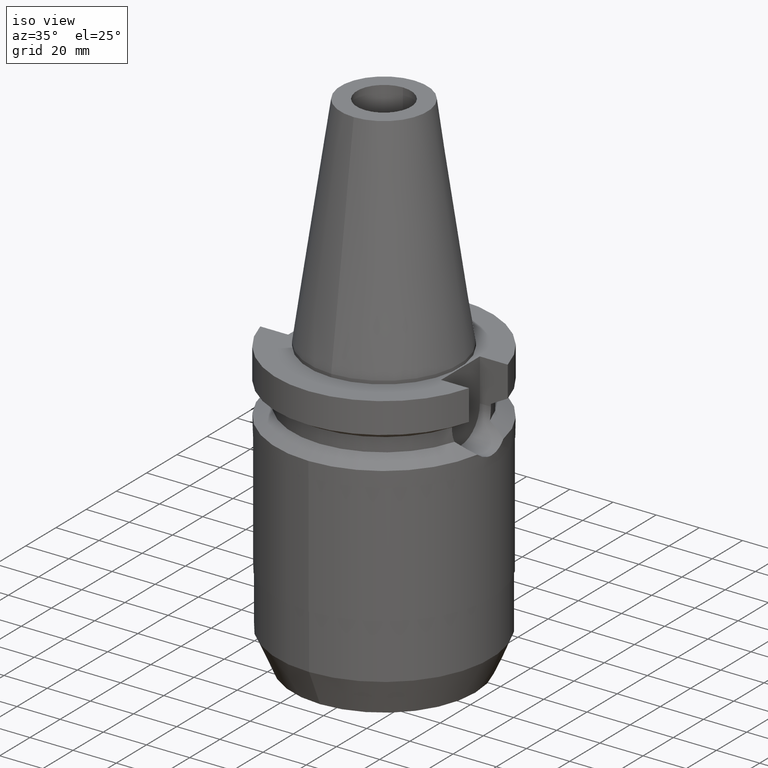
[diagram: clean part render]
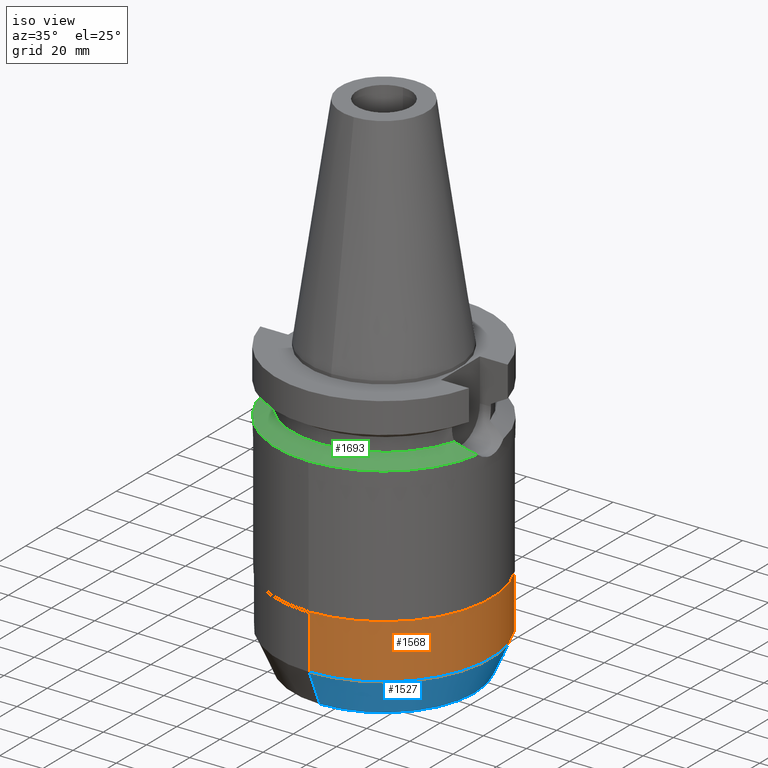
[diagram: same view with three faces highlighted in distinct colors, each labeled with its STEP entity id]
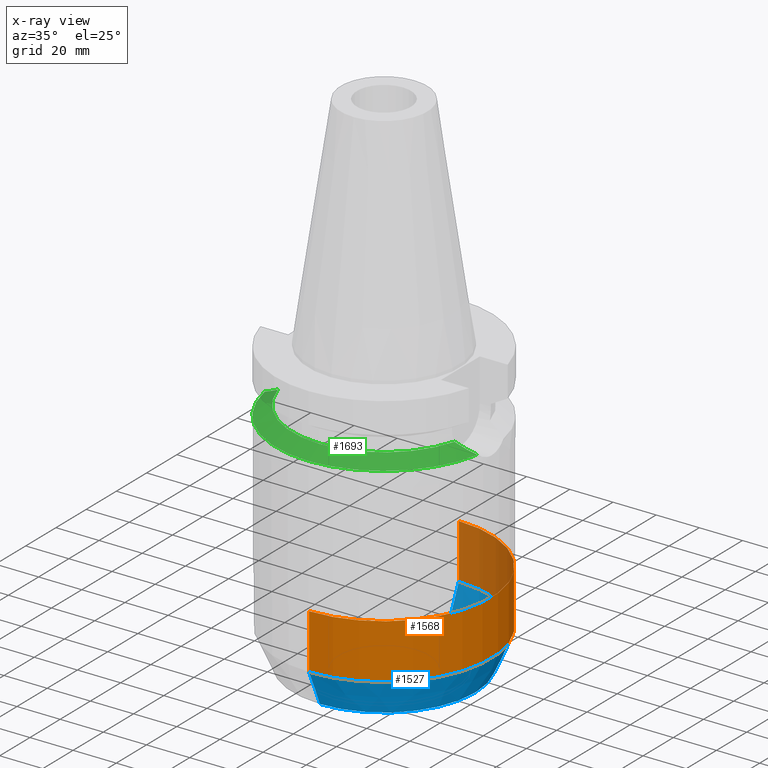
[diagram: x-ray of the same camera — body ghosted, the three highlighted faces saturated]
A machine part, iso view with three faces highlighted in distinct colors.
The next image is the same camera in x-ray (body ghosted, the three faces saturated) — at least one of them is partly hidden behind the body in this view.
Their STEP definitions:

[orange] entity #1568 — the highlighted cylindrical surface (partial cylindrical patch) has radius 49.5 mm, axis along (0, 0, -1).
#331=CARTESIAN_POINT('',(0.E0,0.E0,-1.193E2));
#332=DIRECTION('',(0.E0,0.E0,1.E0));
#333=DIRECTION('',(0.E0,-1.E0,0.E0));
#334=AXIS2_PLACEMENT_3D('',#331,#332,#333);
#354=DIRECTION('',(0.E0,1.426680296211E-14,-1.E0));
#355=VECTOR('',#354,2.54E1);
#356=CARTESIAN_POINT('',(0.E0,-4.95E1,-9.39E1));
#357=LINE('',#356,#355);
#361=DIRECTION('',(0.E0,-1.454654419666E-14,-1.E0));
#362=VECTOR('',#361,2.54E1);
#363=CARTESIAN_POINT('',(0.E0,4.95E1,-9.39E1));
#364=LINE('',#363,#362);
#392=CARTESIAN_POINT('',(0.E0,2.617560068498E-14,-9.39E1));
#393=DIRECTION('',(0.E0,0.E0,-1.E0));
#394=DIRECTION('',(0.E0,1.E0,0.E0));
#395=AXIS2_PLACEMENT_3D('',#392,#393,#394);
#1110=CARTESIAN_POINT('',(0.E0,4.95E1,-1.193E2));
#1111=VERTEX_POINT('',#1110);
#1112=CARTESIAN_POINT('',(0.E0,-4.95E1,-1.193E2));
#1113=VERTEX_POINT('',#1112);
#1114=CARTESIAN_POINT('',(0.E0,4.95E1,-9.39E1));
#1115=VERTEX_POINT('',#1114);
#1116=CARTESIAN_POINT('',(0.E0,-4.95E1,-9.39E1));
#1117=VERTEX_POINT('',#1116);
#1556=CARTESIAN_POINT('',(0.E0,2.617560068498E-14,1.1374E2));
#1557=DIRECTION('',(0.E0,0.E0,-1.E0));
#1558=DIRECTION('',(0.E0,-1.E0,0.E0));
#1559=AXIS2_PLACEMENT_3D('',#1556,#1557,#1558);
#1560=CYLINDRICAL_SURFACE('',#1559,4.95E1);
#1561=ORIENTED_EDGE('',*,*,#1546,.T.);
#1562=ORIENTED_EDGE('',*,*,#1523,.F.);
#1563=ORIENTED_EDGE('',*,*,#1550,.F.);
#1565=ORIENTED_EDGE('',*,*,#1564,.F.);
#1566=EDGE_LOOP('',(#1561,#1562,#1563,#1565));
#1567=FACE_OUTER_BOUND('',#1566,.F.);
#335=CIRCLE('',#334,4.95E1);
#396=CIRCLE('',#395,4.95E1);
#1523=EDGE_CURVE('',#1113,#1111,#335,.T.);
#1546=EDGE_CURVE('',#1115,#1111,#364,.T.);
#1550=EDGE_CURVE('',#1117,#1113,#357,.T.);
#1564=EDGE_CURVE('',#1115,#1117,#396,.T.);
#1568=ADVANCED_FACE('',(#1567),#1560,.T.);

[blue] entity #1527 — the highlighted conical surface has half-angle 24 deg.
#292=CARTESIAN_POINT('',(0.E0,0.E0,-1.355E2));
#293=DIRECTION('',(0.E0,0.E0,1.E0));
#294=DIRECTION('',(0.E0,-1.E0,0.E0));
#295=AXIS2_PLACEMENT_3D('',#292,#293,#294);
#324=DIRECTION('',(0.E0,-4.067366430758E-1,-9.135454576426E-1));
#325=VECTOR('',#324,1.773310771180E1);
#326=CARTESIAN_POINT('',(0.E0,4.95E1,-1.193E2));
#327=LINE('',#326,#325);
#331=CARTESIAN_POINT('',(0.E0,0.E0,-1.193E2));
#332=DIRECTION('',(0.E0,0.E0,1.E0));
#333=DIRECTION('',(0.E0,-1.E0,0.E0));
#334=AXIS2_PLACEMENT_3D('',#331,#332,#333);
#347=DIRECTION('',(0.E0,4.067366430758E-1,-9.135454576426E-1));
#348=VECTOR('',#347,1.773310771180E1);
#349=CARTESIAN_POINT('',(0.E0,-4.95E1,-1.193E2));
#350=LINE('',#349,#348);
#1106=CARTESIAN_POINT('',(0.E0,-4.228729529800E1,-1.355E2));
#1107=CARTESIAN_POINT('',(0.E0,4.228729529800E1,-1.355E2));
#1108=VERTEX_POINT('',#1106);
#1109=VERTEX_POINT('',#1107);
#1110=CARTESIAN_POINT('',(0.E0,4.95E1,-1.193E2));
#1111=VERTEX_POINT('',#1110);
#1112=CARTESIAN_POINT('',(0.E0,-4.95E1,-1.193E2));
#1113=VERTEX_POINT('',#1112);
#1513=CARTESIAN_POINT('',(0.E0,0.E0,-1.274E2));
#1514=DIRECTION('',(0.E0,0.E0,1.E0));
#1515=DIRECTION('',(0.E0,1.E0,0.E0));
#1516=AXIS2_PLACEMENT_3D('',#1513,#1514,#1515);
#1517=CONICAL_SURFACE('',#1516,4.589364764900E1,2.4E1);
#1519=ORIENTED_EDGE('',*,*,#1518,.T.);
#1520=ORIENTED_EDGE('',*,*,#1502,.F.);
#1522=ORIENTED_EDGE('',*,*,#1521,.F.);
#1524=ORIENTED_EDGE('',*,*,#1523,.T.);
#1525=EDGE_LOOP('',(#1519,#1520,#1522,#1524));
#1526=FACE_OUTER_BOUND('',#1525,.F.);
#296=CIRCLE('',#295,4.228729529800E1);
#335=CIRCLE('',#334,4.95E1);
#1502=EDGE_CURVE('',#1108,#1109,#296,.T.);
#1518=EDGE_CURVE('',#1111,#1109,#327,.T.);
#1521=EDGE_CURVE('',#1113,#1108,#350,.T.);
#1523=EDGE_CURVE('',#1113,#1111,#335,.T.);
#1527=ADVANCED_FACE('',(#1526),#1517,.T.);

[green] entity #1693 — the highlighted conical surface has half-angle 60 deg.
#446=CARTESIAN_POINT('',(4.926250064874E1,-8.556052234130E0,-3.073730776427E1));
#489=CARTESIAN_POINT('',(-4.926250064874E1,-8.556052234130E0,
-3.073730776427E1));
#490=CARTESIAN_POINT('',(-4.853454341053E1,-8.973802105537E0,
-3.036449301706E1));
#491=CARTESIAN_POINT('',(-4.693965614036E1,-9.781160430566E0,
-2.954692880279E1));
#492=CARTESIAN_POINT('',(-4.408862980100E1,-1.087309005465E1,
-2.808097206646E1));
#493=CARTESIAN_POINT('',(-4.196941490402E1,-1.146554272243E1,
-2.698671155448E1));
#494=CARTESIAN_POINT('',(-4.085052569294E1,-1.172538061688E1,
-2.640718074535E1));
#499=CARTESIAN_POINT('',(0.E0,0.E0,-2.640718074535E1));
#500=DIRECTION('',(0.E0,0.E0,1.E0));
#501=DIRECTION('',(-9.611888398338E-1,-2.758913086325E-1,0.E0));
#502=AXIS2_PLACEMENT_3D('',#499,#500,#501);
#507=CARTESIAN_POINT('',(0.E0,0.E0,-2.640718074535E1));
#508=DIRECTION('',(0.E0,0.E0,1.E0));
#509=DIRECTION('',(0.E0,-1.E0,0.E0));
#510=AXIS2_PLACEMENT_3D('',#507,#508,#509);
#515=CARTESIAN_POINT('',(4.085052569294E1,-1.172538061688E1,-2.640718074535E1));
#516=CARTESIAN_POINT('',(4.196780114657E1,-1.146591748280E1,-2.698587570572E1));
#517=CARTESIAN_POINT('',(4.408489700264E1,-1.087422242856E1,-2.807904787786E1));
#518=CARTESIAN_POINT('',(4.693500115161E1,-9.783242168608E0,-2.954453877942E1));
#519=CARTESIAN_POINT('',(4.853263066770E1,-8.974899763518E0,-3.036351342829E1));
#520=CARTESIAN_POINT('',(4.926250064874E1,-8.556052234130E0,-3.073730776427E1));
#525=CARTESIAN_POINT('',(0.E0,0.E0,-3.073730776427E1));
#526=DIRECTION('',(0.E0,0.E0,-1.E0));
#527=DIRECTION('',(9.852500129747E-1,-1.711210446826E-1,0.E0));
#528=AXIS2_PLACEMENT_3D('',#525,#526,#527);
#533=CARTESIAN_POINT('',(0.E0,0.E0,-3.073730776427E1));
#534=DIRECTION('',(0.E0,0.E0,-1.E0));
#535=DIRECTION('',(0.E0,-1.E0,0.E0));
#536=AXIS2_PLACEMENT_3D('',#533,#534,#535);
#1132=VERTEX_POINT('',#446);
#1135=CARTESIAN_POINT('',(0.E0,-5.E1,-3.073730776427E1));
#1136=VERTEX_POINT('',#1135);
#1137=VERTEX_POINT('',#515);
#1148=VERTEX_POINT('',#489);
#1149=VERTEX_POINT('',#494);
#1150=CARTESIAN_POINT('',(0.E0,-4.25E1,-2.640718074535E1));
#1151=VERTEX_POINT('',#1150);
#1676=CARTESIAN_POINT('',(0.E0,0.E0,-2.857224425481E1));
#1677=DIRECTION('',(0.E0,0.E0,-1.E0));
#1678=DIRECTION('',(0.E0,-1.E0,0.E0));
#1679=AXIS2_PLACEMENT_3D('',#1676,#1677,#1678);
#1680=CONICAL_SURFACE('',#1679,4.625E1,6.E1);
#1682=ORIENTED_EDGE('',*,*,#1681,.T.);
#1684=ORIENTED_EDGE('',*,*,#1683,.T.);
#1686=ORIENTED_EDGE('',*,*,#1685,.T.);
#1687=ORIENTED_EDGE('',*,*,#1657,.T.);
#1688=ORIENTED_EDGE('',*,*,#1645,.T.);
#1690=ORIENTED_EDGE('',*,*,#1689,.T.);
#1691=EDGE_LOOP('',(#1682,#1684,#1686,#1687,#1688,#1690));
#1692=FACE_OUTER_BOUND('',#1691,.F.);
#495=B_SPLINE_CURVE_WITH_KNOTS('',3,(#489,#490,#491,#492,#493,#494),
.UNSPECIFIED.,.F.,.F.,(4,1,1,4),(0.E0,3.333333333333E-1,6.666666666667E-1,1.E0),
.UNSPECIFIED.);
#503=CIRCLE('',#502,4.25E1);
#511=CIRCLE('',#510,4.25E1);
#521=B_SPLINE_CURVE_WITH_KNOTS('',3,(#515,#516,#517,#518,#519,#520),
.UNSPECIFIED.,.F.,.F.,(4,1,1,4),(0.E0,3.333333333333E-1,6.666666666667E-1,1.E0),
.UNSPECIFIED.);
#529=CIRCLE('',#528,5.E1);
#537=CIRCLE('',#536,5.E1);
#1645=EDGE_CURVE('',#1132,#1136,#529,.T.);
#1657=EDGE_CURVE('',#1137,#1132,#521,.T.);
#1681=EDGE_CURVE('',#1148,#1149,#495,.T.);
#1683=EDGE_CURVE('',#1149,#1151,#503,.T.);
#1685=EDGE_CURVE('',#1151,#1137,#511,.T.);
#1689=EDGE_CURVE('',#1136,#1148,#537,.T.);
#1693=ADVANCED_FACE('',(#1692),#1680,.T.);